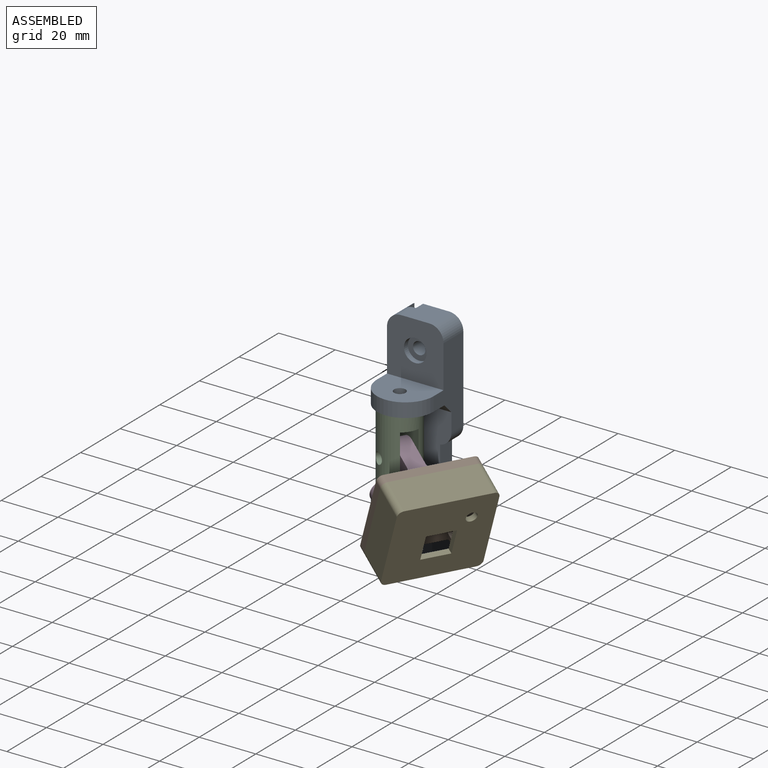
[diagram: assembled view]
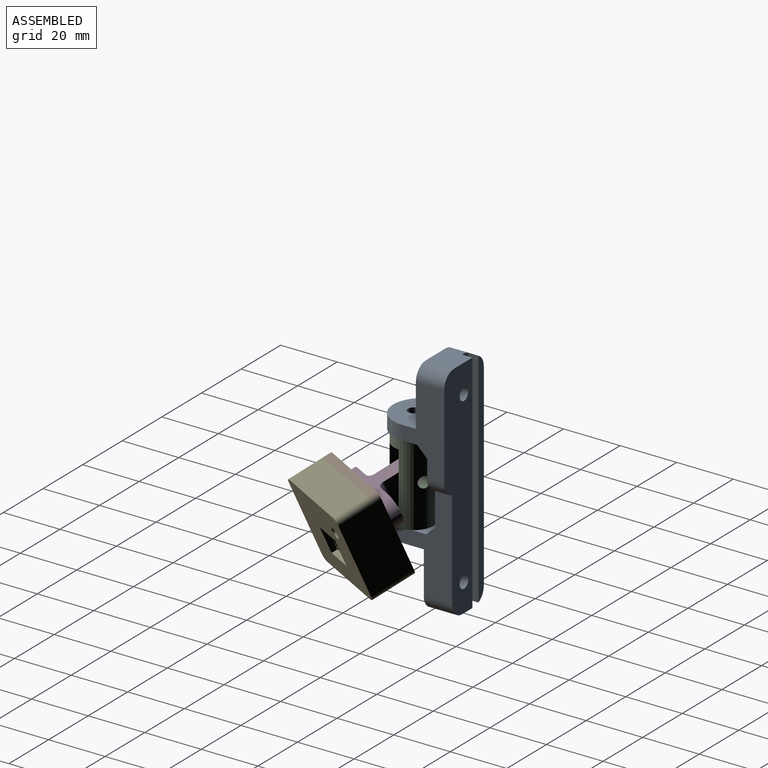
[diagram: assembled view, second angle]
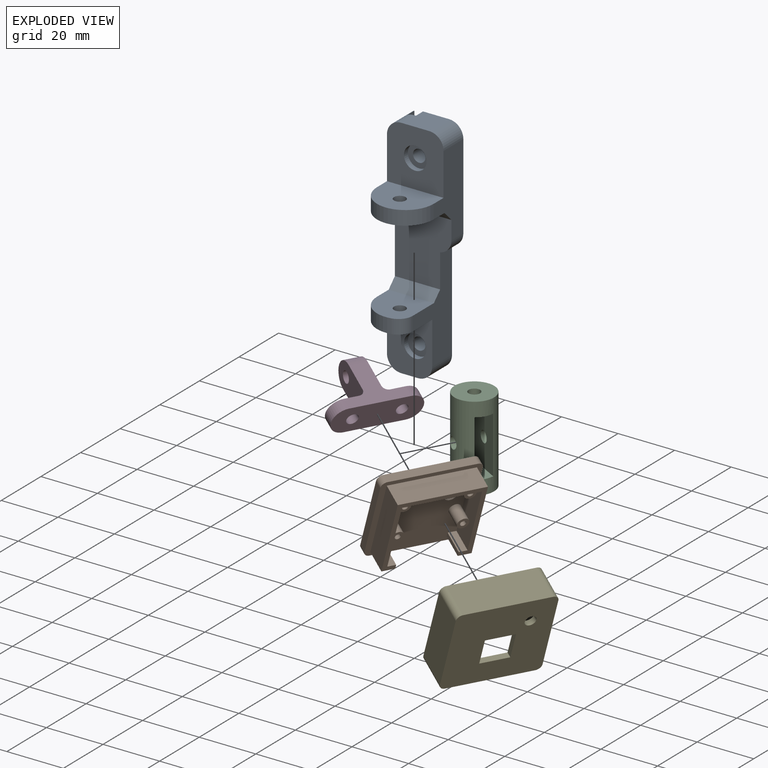
[diagram: exploded view]
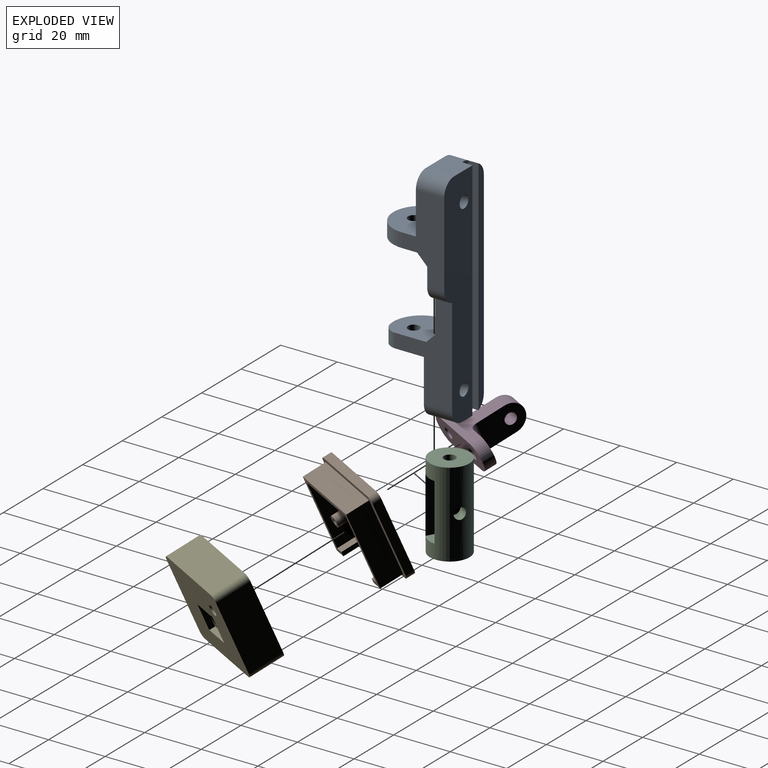
[diagram: exploded view, second angle]
ASSEMBLY  parts=5 mates=4
PART A: 39 faces, bbox 20x25x80 mm
  f0: plane 0.43x0.43mm, normal (0,0.71,0.71), area 0mm2, adj f1,f17,f18
  f1: plane 30.11x10mm, normal (1,0,0), area 266.9mm2, adj f0,f2,f9,f15,f18,f32,f36,f38
  f2: cylinder r=5mm len=6mm, axis (0,-1,0), area 41.1mm2, adj f1,f10,f15,f36
  f3: cylinder r=2.2mm len=8mm, axis (0,1,0), area 110.6mm2, adj f15,f30
  f4: cylinder r=2.2mm len=8mm, axis (0,1,0), area 110.6mm2, adj f15,f29
  f5: plane 78.88x2.7mm, normal (0,1,0), area 206.1mm2, adj f12,f25,f33,f34
  f6: plane 16x15.85mm, normal (0,0,1), area 213.1mm2, adj f8,f10,f20,f21,f24,f37
  f7: plane 16x15mm, normal (0,0,-1), area 199.4mm2, adj f8,f10,f14,f20,f21,f24
  f8: cylinder r=10mm len=12mm, axis (0,0,1), area 88.6mm2, adj f6,f7,f20,f24
  f9: plane 20x20mm, normal (0,-1,0), area 339mm2, adj f1,f11,f12,f19,f28,f32,f33
  f10: plane 35x19.9mm, normal (1,0,0), area 344.5mm2, adj f2,f6,f7,f14,f15,f24,f35,f36
  f11: plane 10x10mm, normal (0,0,1), area 97.3mm2, adj f9,f15,f26,f27,f32,f33
  f12: plane 70x10mm, normal (-1,0,0), area 590.9mm2, adj f5,f9,f14,f16,f20,f33,f34,f36
  f13: plane 10x6mm, normal (0,0,-1), area 57.3mm2, adj f14,f15,f26,f27,f34,f35
  f14: plane 20x16mm, normal (0,-1,0), area 259mm2, adj f7,f10,f12,f13,f31,f34,f35
  f15: plane 80x14.25mm, normal (0,1,0), area 933.7mm2, adj f1,f2,f3,f4,f10,f11,f13,f27
  f16: plane 5.44x5mm, normal (-1,0,0), area 25.1mm2, adj f12,f17,f19,f23,f38
  f17: plane 20x15.43mm, normal (0,0,-1), area 252.5mm2, adj f0,f16,f18,f22,f23,f38
  f18: plane 5.44x5mm, normal (1,0,0), area 25.1mm2, adj f0,f1,f17,f19,f23
  f19: plane 20x15mm, normal (0,0,1), area 243.9mm2, adj f9,f16,f18,f22,f23
  f20: plane 5.86x5mm, normal (-1,0,0), area 25.4mm2, adj f6,f7,f8,f12,f37
  f21: cylinder r=2.05mm len=5mm, axis (0,0,1), area 64.4mm2, adj f6,f7
  f22: cylinder r=2.05mm len=5mm, axis (0,0,1), area 64.4mm2, adj f17,f19
  f23: cylinder r=10mm len=20mm, axis (0,0,1), area 157.1mm2, adj f16,f17,f18,f19
  f24: cylinder r=5mm len=5mm, axis (0,0,1), area 34.2mm2, adj f6,f7,f8,f10
  f25: plane 78.88x3.61mm, normal (1,0,0), area 284.8mm2, adj f5,f26,f33,f34
  f26: plane 80x3.05mm, normal (0,1,0), area 243.4mm2, adj f11,f13,f25,f27,f33,f34
  f27: plane 80x3.61mm, normal (-1,0,0), area 288.9mm2, adj f11,f13,f15,f26
  f28: cylinder r=4mm len=8mm, axis (0,-1,0), area 50.3mm2, adj f9,f29
  f29: plane 8x8mm, normal (0,-1,0), area 35.1mm2, adj f4,f28
  f30: plane 8x8mm, normal (0,-1,0), area 35.1mm2, adj f3,f31
  f31: cylinder r=4mm len=8mm, axis (0,-1,0), area 50.3mm2, adj f14,f30
  f32: cylinder r=5mm len=10mm, axis (0,1,0), area 78.5mm2, adj f1,f9,f11,f15
  f33: cylinder r=5mm len=10mm, axis (0,-1,0), area 69.9mm2, adj f5,f9,f11,f12,f25,f26
  f34: cylinder r=5mm len=10mm, axis (0,1,0), area 69.9mm2, adj f5,f12,f13,f14,f25,f26
  f35: cylinder r=5mm len=10mm, axis (0,-1,0), area 78.5mm2, adj f10,f13,f14,f15
  f36: plane 23.28x20mm, normal (0,-1,0), area 413.3mm2, adj f1,f2,f10,f12,f37,f38
  f37: plane 16x4mm, normal (0,-0.71,0.71), area 71.3mm2, adj f6,f10,f12,f20,f36
  f38: plane 20x4mm, normal (0,-0.71,-0.71), area 100.9mm2, adj f1,f12,f16,f17,f36
PART B: 37 faces, bbox 33x11x31 mm
  f0: plane 33x31mm, normal (0,-1,0), area 798.8mm2, adj f2,f3,f4,f8,f10,f12,f14,f16
  f1: plane 33x31mm, normal (0,1,0), area 976.6mm2, adj f2,f3,f4,f5,f6,f7,f8,f9
  f2: plane 27x3mm, normal (1,0,0), area 81mm2, adj f0,f1,f33,f36
  f3: plane 29x3mm, normal (0,0,1), area 87mm2, adj f0,f1,f33,f34
  f4: plane 27x3mm, normal (-1,0,0), area 81mm2, adj f0,f1,f34,f35
  f5: cylinder r=1mm len=9mm, axis (0,1,0), area 56.5mm2, adj f1,f15
  f6: cylinder r=1mm len=9mm, axis (0,1,0), area 56.5mm2, adj f1,f13
  f7: cylinder r=1mm len=9mm, axis (0,1,0), area 56.5mm2, adj f1,f11
  f8: plane 29x3mm, normal (0,0,-1), area 87mm2, adj f0,f1,f35,f36
  f9: cylinder r=1mm len=9mm, axis (0,1,0), area 56.5mm2, adj f1,f17
  f10: cylinder r=2mm len=6mm, axis (0,1,0), area 75.4mm2, adj f0,f11
  f11: plane 4x4mm, normal (0,-1,0), area 9.4mm2, adj f7,f10
  f12: cylinder r=2mm len=6mm, axis (0,1,0), area 75.4mm2, adj f0,f13
  f13: plane 4x4mm, normal (0,-1,0), area 9.4mm2, adj f6,f12
  f14: cylinder r=2mm len=6mm, axis (0,1,0), area 75.4mm2, adj f0,f15
  f15: plane 4x4mm, normal (0,-1,0), area 9.4mm2, adj f5,f14
  f16: cylinder r=2mm len=6mm, axis (0,1,0), area 75.4mm2, adj f0,f17
  f17: plane 4x4mm, normal (0,-1,0), area 9.4mm2, adj f9,f16
  f18: plane 8x4.47mm, normal (0,0,-1), area 35.7mm2, adj f0,f19,f29,f30
  f19: plane 8x1.6mm, normal (1,0,0), area 12.8mm2, adj f0,f18,f20,f30
  f20: plane 8x2.87mm, normal (0,0,1), area 22.9mm2, adj f0,f19,f21,f30
  f21: plane 24.8x8mm, normal (1,0,0), area 198.4mm2, adj f0,f20,f22,f30
  f22: plane 25.8x8mm, normal (0,0,-1), area 206.4mm2, adj f0,f21,f23,f30
  f23: plane 24.8x8mm, normal (-1,0,0), area 198.4mm2, adj f0,f22,f24,f30
  f24: plane 8x2.87mm, normal (0,0,1), area 22.9mm2, adj f0,f23,f25,f30
  f25: plane 8x1.6mm, normal (-1,0,0), area 12.8mm2, adj f0,f24,f26,f30
  f26: plane 8x4.47mm, normal (0,0,-1), area 35.7mm2, adj f0,f25,f27,f30
  f27: plane 28x8mm, normal (1,0,0), area 224mm2, adj f0,f26,f28,f30
  f28: plane 29x8mm, normal (0,0,1), area 232mm2, adj f0,f27,f29,f30
  f29: plane 28x8mm, normal (-1,0,0), area 224mm2, adj f0,f18,f28,f30
  f30: plane 29x28mm, normal (0,-1,0), area 140mm2, adj f18,f19,f20,f21,f22,f23,f24,f25
  f31: cylinder r=2.2mm len=4.4mm, axis (0,-1,0), area 41.5mm2, adj f0,f1
  f32: cylinder r=2.2mm len=4.4mm, axis (0,-1,0), area 41.5mm2, adj f0,f1
  f33: cylinder r=2mm len=3mm, axis (0,1,0), area 9.4mm2, adj f0,f1,f2,f3
  f34: cylinder r=2mm len=3mm, axis (0,-1,0), area 9.4mm2, adj f0,f1,f3,f4
  f35: cylinder r=2mm len=3mm, axis (0,1,0), area 9.4mm2, adj f0,f1,f4,f8
  f36: cylinder r=2mm len=3mm, axis (0,-1,0), area 9.4mm2, adj f0,f1,f2,f8
PART C: 11 faces, bbox 14x14x30 mm
  f0: cylinder r=2.05mm len=5mm, axis (0,0,-1), area 64.4mm2, adj f4,f7
  f1: cylinder r=7mm len=30mm, axis (0,0,-1), area 1046mm2, adj f3,f4,f5,f6,f7,f8,f9,f10
  f2: cylinder r=2.05mm len=5mm, axis (0,0,-1), area 64.4mm2, adj f3,f8
  f3: plane 14x14mm, normal (0,0,1), area 140.7mm2, adj f1,f2
  f4: plane 14x14mm, normal (0,0,-1), area 140.7mm2, adj f0,f1
  f5: plane 20x12.65mm, normal (-1,0,0), area 240.4mm2, adj f1,f7,f8,f10
  f6: plane 20x12.65mm, normal (1,0,0), area 240.4mm2, adj f1,f7,f8,f9
  f7: plane 14x6mm, normal (0,0,1), area 68.2mm2, adj f0,f1,f5,f6
  f8: plane 14x6mm, normal (0,0,-1), area 68.2mm2, adj f1,f2,f5,f6
  f9: cylinder r=2mm len=4mm, axis (1,0,0), area 48.4mm2, adj f1,f6
  f10: cylinder r=2mm len=4mm, axis (1,0,0), area 48.4mm2, adj f1,f5
PART D: 15 faces, bbox 30x21x10 mm
  f0: plane 10x10mm, normal (0,1,0), area 76.7mm2, adj f1,f2,f3,f12,f13
  f1: plane 20x16mm, normal (0,0,-1), area 153.7mm2, adj f0,f5,f6,f7,f8,f9,f11,f12
  f2: cylinder r=2mm len=4mm, axis (0,1,0), area 50.3mm2, adj f0,f5
  f3: plane 20x16mm, normal (0,0,1), area 153.7mm2, adj f0,f5,f6,f7,f8,f9,f11,f12
  f4: cylinder r=2mm len=4mm, axis (0,1,0), area 50.3mm2, adj f5,f6
  f5: plane 30x10mm, normal (0,-1,0), area 253.4mm2, adj f1,f2,f3,f4,f11,f12
  f6: plane 10x10mm, normal (0,1,0), area 76.7mm2, adj f1,f3,f4,f11,f14
  f7: plane 15x10mm, normal (1,0,0), area 126.7mm2, adj f1,f3,f9,f10,f13
  f8: plane 15x10mm, normal (-1,0,0), area 126.7mm2, adj f1,f3,f9,f10,f14
  f9: cylinder r=5mm len=10mm, axis (1,0,0), area 94.2mm2, adj f1,f3,f7,f8
  f10: cylinder r=2mm len=6mm, axis (-1,0,0), area 75.4mm2, adj f7,f8
  f11: cylinder r=5mm len=10mm, axis (0,-1,0), area 62.8mm2, adj f1,f3,f5,f6
  f12: cylinder r=5mm len=10mm, axis (0,1,0), area 62.8mm2, adj f0,f1,f3,f5
  f13: cylinder r=2mm len=10mm, axis (0,0,1), area 31.4mm2, adj f0,f1,f3,f7
  f14: cylinder r=2mm len=10mm, axis (0,0,-1), area 31.4mm2, adj f1,f3,f6,f8
PART E: 31 faces, bbox 33x12x31 mm
  f0: plane 28x10mm, normal (-1,0,0), area 254.8mm2, adj f1,f2,f3,f10,f19,f20,f25,f26
  f1: plane 29x28mm, normal (0,1,0), area 605.2mm2, adj f0,f2,f3,f4,f11,f12,f13,f14
  f2: plane 29x10mm, normal (0,0,1), area 144.8mm2, adj f0,f1,f4,f10,f15,f16,f17,f23
  f3: plane 29x10mm, normal (0,0,-1), area 264.8mm2, adj f0,f1,f4,f10,f19,f20,f21,f22
  f4: plane 28x10mm, normal (1,0,0), area 254.8mm2, adj f1,f2,f3,f10,f21,f22,f23,f24
  f5: plane 29x12mm, normal (0,0,-1), area 228mm2, adj f9,f10,f15,f16,f17,f29,f30
  f6: plane 27x12mm, normal (1,0,0), area 324mm2, adj f9,f10,f27,f30
  f7: plane 29x12mm, normal (0,0,1), area 348mm2, adj f9,f10,f27,f28
  f8: plane 27x12mm, normal (-1,0,0), area 324mm2, adj f9,f10,f28,f29
  f9: plane 33x31mm, normal (0,-1,0), area 910.8mm2, adj f5,f6,f7,f8,f11,f12,f13,f14
  f10: plane 33x31mm, normal (0,1,0), area 171.6mm2, adj f0,f2,f3,f4,f5,f6,f7,f8
  f11: plane 10x2mm, normal (0,0,-1), area 20mm2, adj f1,f9,f12,f14
  f12: plane 9.76x2mm, normal (-1,0,0), area 19.5mm2, adj f1,f9,f11,f13
  f13: plane 10x2mm, normal (0,0,1), area 20mm2, adj f1,f9,f12,f14
  f14: plane 9.76x2mm, normal (1,0,0), area 19.5mm2, adj f1,f9,f11,f13
  f15: plane 5x1.5mm, normal (1,0,0), area 7.5mm2, adj f2,f5,f10,f17
  f16: plane 5x1.5mm, normal (-1,0,0), area 7.5mm2, adj f2,f5,f10,f17
  f17: plane 24x1.5mm, normal (0,1,0), area 36mm2, adj f2,f5,f15,f16
  f18: cylinder r=1.89mm len=3.77mm, axis (0,1,0), area 23.7mm2, adj f1,f9
  f19: plane 7x7mm, normal (-0.71,0,-0.71), area 17.8mm2, adj f0,f1,f3,f20
  f20: plane 7x7mm, normal (0,1,0), area 24.5mm2, adj f0,f3,f19
  f21: plane 7x7mm, normal (0.71,0,-0.71), area 17.8mm2, adj f1,f3,f4,f22
  f22: plane 7x7mm, normal (0,1,0), area 24.5mm2, adj f3,f4,f21
  f23: plane 7x7mm, normal (0.71,0,0.71), area 17.8mm2, adj f1,f2,f4,f24
  f24: plane 7x7mm, normal (0,1,0), area 24.5mm2, adj f2,f4,f23
  f25: plane 7x7mm, normal (-0.71,0,0.71), area 17.8mm2, adj f0,f1,f2,f26
  f26: plane 7x7mm, normal (0,1,0), area 24.5mm2, adj f0,f2,f25
  f27: cylinder r=2mm len=12mm, axis (0,1,0), area 37.7mm2, adj f6,f7,f9,f10
  f28: cylinder r=2mm len=12mm, axis (0,-1,0), area 37.7mm2, adj f7,f8,f9,f10
  f29: cylinder r=2mm len=12mm, axis (0,1,0), area 37.7mm2, adj f5,f8,f9,f10
  f30: cylinder r=2mm len=12mm, axis (0,-1,0), area 37.7mm2, adj f5,f6,f9,f10
PLACE A t=(165.9,-18.38,-150.48)mm fixed
PLACE B rot(axis=(0.32,0.19,0.93),64.5deg) t=(88.8,162.27,-70.64)mm
PLACE C rot(axis=(0,0,1),60.7deg) t=(36.53,98.06,-2.34)mm
PLACE D rot(axis=(0.32,0.19,0.93),64.5deg) t=(63.11,173.25,-125.9)mm
PLACE E rot(axis=(0.32,0.19,0.93),64.5deg) t=(67.05,119.24,-73.48)mm
MATE revolute C.f0 <-> A.f21  axis (0,0,1) through (-1.8,-36.15,27.66)mm
MATE revolute D.f10 <-> C.f9  axis (-0.49,-0.87,0) through (-3.27,-38.77,12.66)mm
MATE fastened B.f31 <-> D.f2  axis (-0.8,0.45,0.39) through (14.96,-36.37,6.42)mm
MATE fastened E.f10 <-> B.f0  axis (-0.8,0.45,0.39) through (17.34,-46.87,15.73)mm
